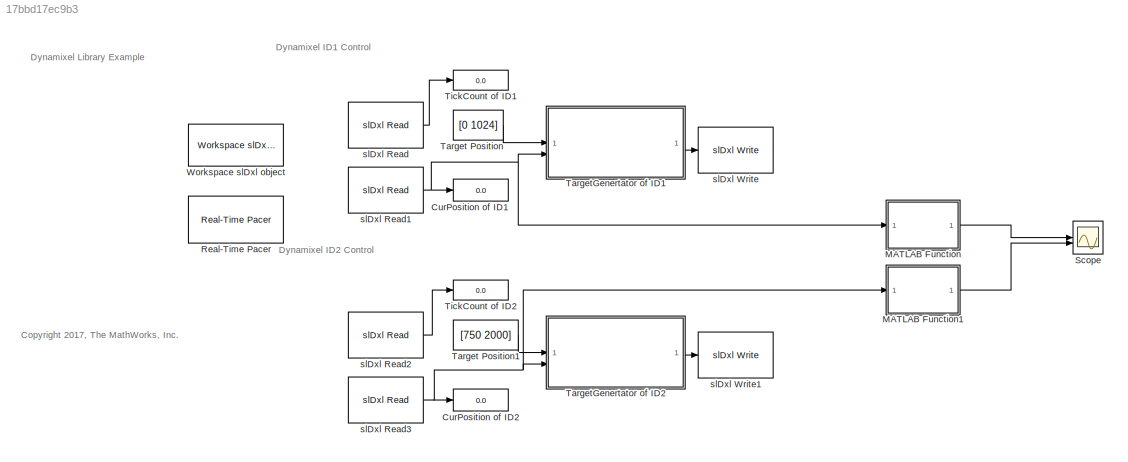
MODEL slx_17bbd17ec9b3
KIND model
CONFIG AbsTol = auto
CONFIG EnableMultiTasking = off
CONFIG FixedStep = auto
CONFIG MaxStep = auto
CONFIG MinStep = auto
CONFIG RelTol = 1e-3
CONFIG SampleTimeConstraint = Unconstrained
CONFIG SolverName = VariableStepAuto
CONFIG StartTime = 0.0
CONFIG StopTime = inf
BLOCK [Display] CurPosition of ID1
  Decimation = 1
  Format = long
BLOCK [Display] CurPosition of ID2
  Decimation = 1
  Format = long
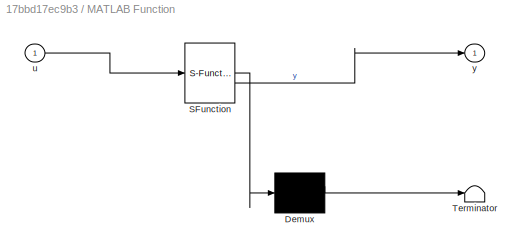
BLOCK [SubSystem] MATLAB Function
  ErrorFcn = Stateflow.Translate.translate
  LibrarySourceBlock = simulink/User-Defined\nFunctions/MATLAB Function
  PermitHierarchicalResolution = ExplicitOnly
  SFBlockType = MATLAB Function
  TreatAsAtomicUnit = on
BLOCK [Demux] MATLAB Function/ Demux 
  Outputs = 1
BLOCK [S-Function] MATLAB Function/ SFunction 
  EnableBusSupport = on
  FunctionName = sf_sfun
  PortCounts = [1 2]
  SFcnIsStateOwnerBlock = off
  SFunctionDeploymentMode = off
  Tag = Stateflow S-Function 2
BLOCK [Terminator] MATLAB Function/ Terminator 
BLOCK [Inport] MATLAB Function/u
BLOCK [Outport] MATLAB Function/y
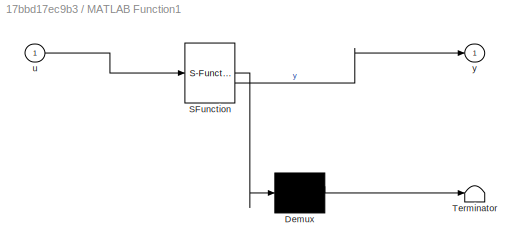
BLOCK [SubSystem] MATLAB Function1
  ErrorFcn = Stateflow.Translate.translate
  LibrarySourceBlock = simulink/User-Defined\nFunctions/MATLAB Function
  PermitHierarchicalResolution = ExplicitOnly
  SFBlockType = MATLAB Function
  TreatAsAtomicUnit = on
BLOCK [Demux] MATLAB Function1/ Demux 
  Outputs = 1
BLOCK [S-Function] MATLAB Function1/ SFunction 
  EnableBusSupport = on
  FunctionName = sf_sfun
  PortCounts = [1 2]
  SFcnIsStateOwnerBlock = off
  SFunctionDeploymentMode = off
  Tag = Stateflow S-Function 4
BLOCK [Terminator] MATLAB Function1/ Terminator 
BLOCK [Inport] MATLAB Function1/u
BLOCK [Outport] MATLAB Function1/y
BLOCK [Reference] Real-Time Pacer  REF=slDxl_lib/Real-Time Pacer
  SourceBlock = slDxl_lib/Real-Time Pacer
  SourceType = RealTime_Pacer
BLOCK [Scope] Scope
  Floating = off
  NumInputPorts = 2
  ScopeSpecificationString = Simulink.scopes.TimeScopeBlockCfg('CurrentConfiguration', extmgr.ConfigurationSet(extmgr.Configuration('Core','General UI',true),extmgr.Configuration('Core','Source UI',true),extmgr.Configuration('Sources','WiredSimulink',true),extmgr.Configuration('Visuals','Time Domain',true,'SerializedDisplays',{struct('MinYLimReal','-46.9011','MaxYLimReal','62.98902','YLabelReal','','MinYLimMag','0.00000','Max...<+1497ch>
BLOCK [Constant] Target Position
  Value = [0 1024]
BLOCK [Constant] Target Position1
  Value = [750 2000]
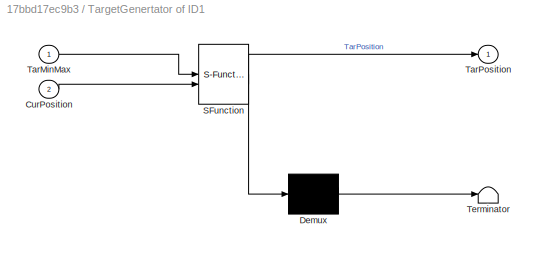
BLOCK [SubSystem] TargetGenertator of ID1
  ErrorFcn = Stateflow.Translate.translate
  PermitHierarchicalResolution = ExplicitOnly
  SFBlockType = Chart
  TreatAsAtomicUnit = on
BLOCK [Demux] TargetGenertator of ID1/ Demux 
  Outputs = 1
BLOCK [S-Function] TargetGenertator of ID1/ SFunction 
  EnableBusSupport = on
  FunctionName = sf_sfun
  PortCounts = [2 2]
  SFcnIsStateOwnerBlock = off
  SFunctionDeploymentMode = off
  Tag = Stateflow S-Function 3
BLOCK [Terminator] TargetGenertator of ID1/ Terminator 
BLOCK [Inport] TargetGenertator of ID1/CurPosition
  Port = 2
BLOCK [Inport] TargetGenertator of ID1/TarMinMax
BLOCK [Outport] TargetGenertator of ID1/TarPosition
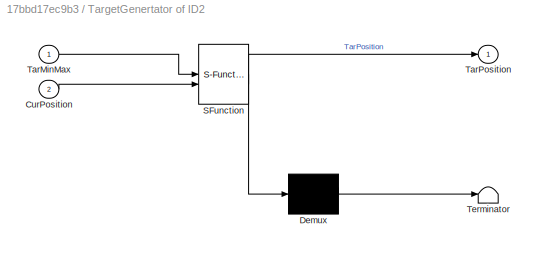
BLOCK [SubSystem] TargetGenertator of ID2
  ErrorFcn = Stateflow.Translate.translate
  PermitHierarchicalResolution = ExplicitOnly
  SFBlockType = Chart
  TreatAsAtomicUnit = on
BLOCK [Demux] TargetGenertator of ID2/ Demux 
  Outputs = 1
BLOCK [S-Function] TargetGenertator of ID2/ SFunction 
  EnableBusSupport = on
  FunctionName = sf_sfun
  PortCounts = [2 2]
  SFcnIsStateOwnerBlock = off
  SFunctionDeploymentMode = off
  Tag = Stateflow S-Function 1
BLOCK [Terminator] TargetGenertator of ID2/ Terminator 
BLOCK [Inport] TargetGenertator of ID2/CurPosition
  Port = 2
BLOCK [Inport] TargetGenertator of ID2/TarMinMax
BLOCK [Outport] TargetGenertator of ID2/TarPosition
BLOCK [Display] TickCount of ID1
  Decimation = 1
  Format = long
BLOCK [Display] TickCount of ID2
  Decimation = 1
  Format = long
BLOCK [Reference] Workspace slDxl object  REF=slDxl_lib/Workspace slDxl object
  SourceBlock = slDxl_lib/Workspace slDxl object
  SourceType = slDxl Setup
BLOCK [Reference] slDxl Read  REF=slDxl_lib/slDxl Read
  SourceBlock = slDxl_lib/slDxl Read
BLOCK [Reference] slDxl Read1  REF=slDxl_lib/slDxl Read
  SourceBlock = slDxl_lib/slDxl Read
BLOCK [Reference] slDxl Read2  REF=slDxl_lib/slDxl Read
  SourceBlock = slDxl_lib/slDxl Read
BLOCK [Reference] slDxl Read3  REF=slDxl_lib/slDxl Read
  SourceBlock = slDxl_lib/slDxl Read
BLOCK [Reference] slDxl Write  REF=slDxl_lib/slDxl Write
  Commented = on
  SourceBlock = slDxl_lib/slDxl Write
BLOCK [Reference] slDxl Write1  REF=slDxl_lib/slDxl Write
  Commented = on
  SourceBlock = slDxl_lib/slDxl Write
ANNOTATION (root): Dynamixel Library Example
ANNOTATION (root): <copyright redacted>
ANNOTATION (root): Dynamixel ID1 Control
ANNOTATION (root): Dynamixel ID2 Control
LINE MATLAB Function1:1 -> Scope:2
LINE MATLAB Function:1 -> Scope:1
LINE Target Position1:1 -> TargetGenertator of ID2:1
LINE Target Position:1 -> TargetGenertator of ID1:1
LINE TargetGenertator of ID1:1 -> slDxl Write:1
LINE TargetGenertator of ID2:1 -> slDxl Write1:1
NET slDxl Read1:1 -> CurPosition of ID1:1, MATLAB Function:1, TargetGenertator of ID1:2
LINE slDxl Read2:1 -> TickCount of ID2:1
NET slDxl Read3:1 -> CurPosition of ID2:1, MATLAB Function1:1, TargetGenertator of ID2:2
LINE slDxl Read:1 -> TickCount of ID1:1
note: NET lines group one-source signal fan-out (src -> all destinations, sorted); 1:1 wires keep LINE
CHART TargetGenertator of ID2 states=3 transitions=6
  STATE_LABEL 'MinTarget\nen:\nTarPosition = TarMinMax(1);'
  STATE_LABEL 'CheckPosition\nen:\nThres = 10;\n'
  STATE_LABEL 'MaxTarget\nen:\nTarPosition = TarMinMax(2);'
CHART MATLAB Function states=1 transitions=1
  STATE_LABEL 'eML_blk_kernel()'
  STATE_LABEL 'SCRIPT:\nfunction y = fcn(u)\ny = (0.08791209*u) - 180;\n'
CHART TargetGenertator of ID1 states=3 transitions=6
  STATE_LABEL 'MinTarget\nen:\nTarPosition = TarMinMax(1);'
  STATE_LABEL 'CheckPosition\nen:\nThres = 10;\n'
  STATE_LABEL 'MaxTarget\nen:\nTarPosition = TarMinMax(2);'
CHART MATLAB Function1 states=1 transitions=1
  STATE_LABEL 'eML_blk_kernel()'
  STATE_LABEL 'SCRIPT:\nfunction y = fcn(u)\ny = (0.08791209*u) - 180;\n'
CHART  states=0 transitions=0
CHART  states=0 transitions=0
CHART  states=0 transitions=0
CHART  states=0 transitions=0
